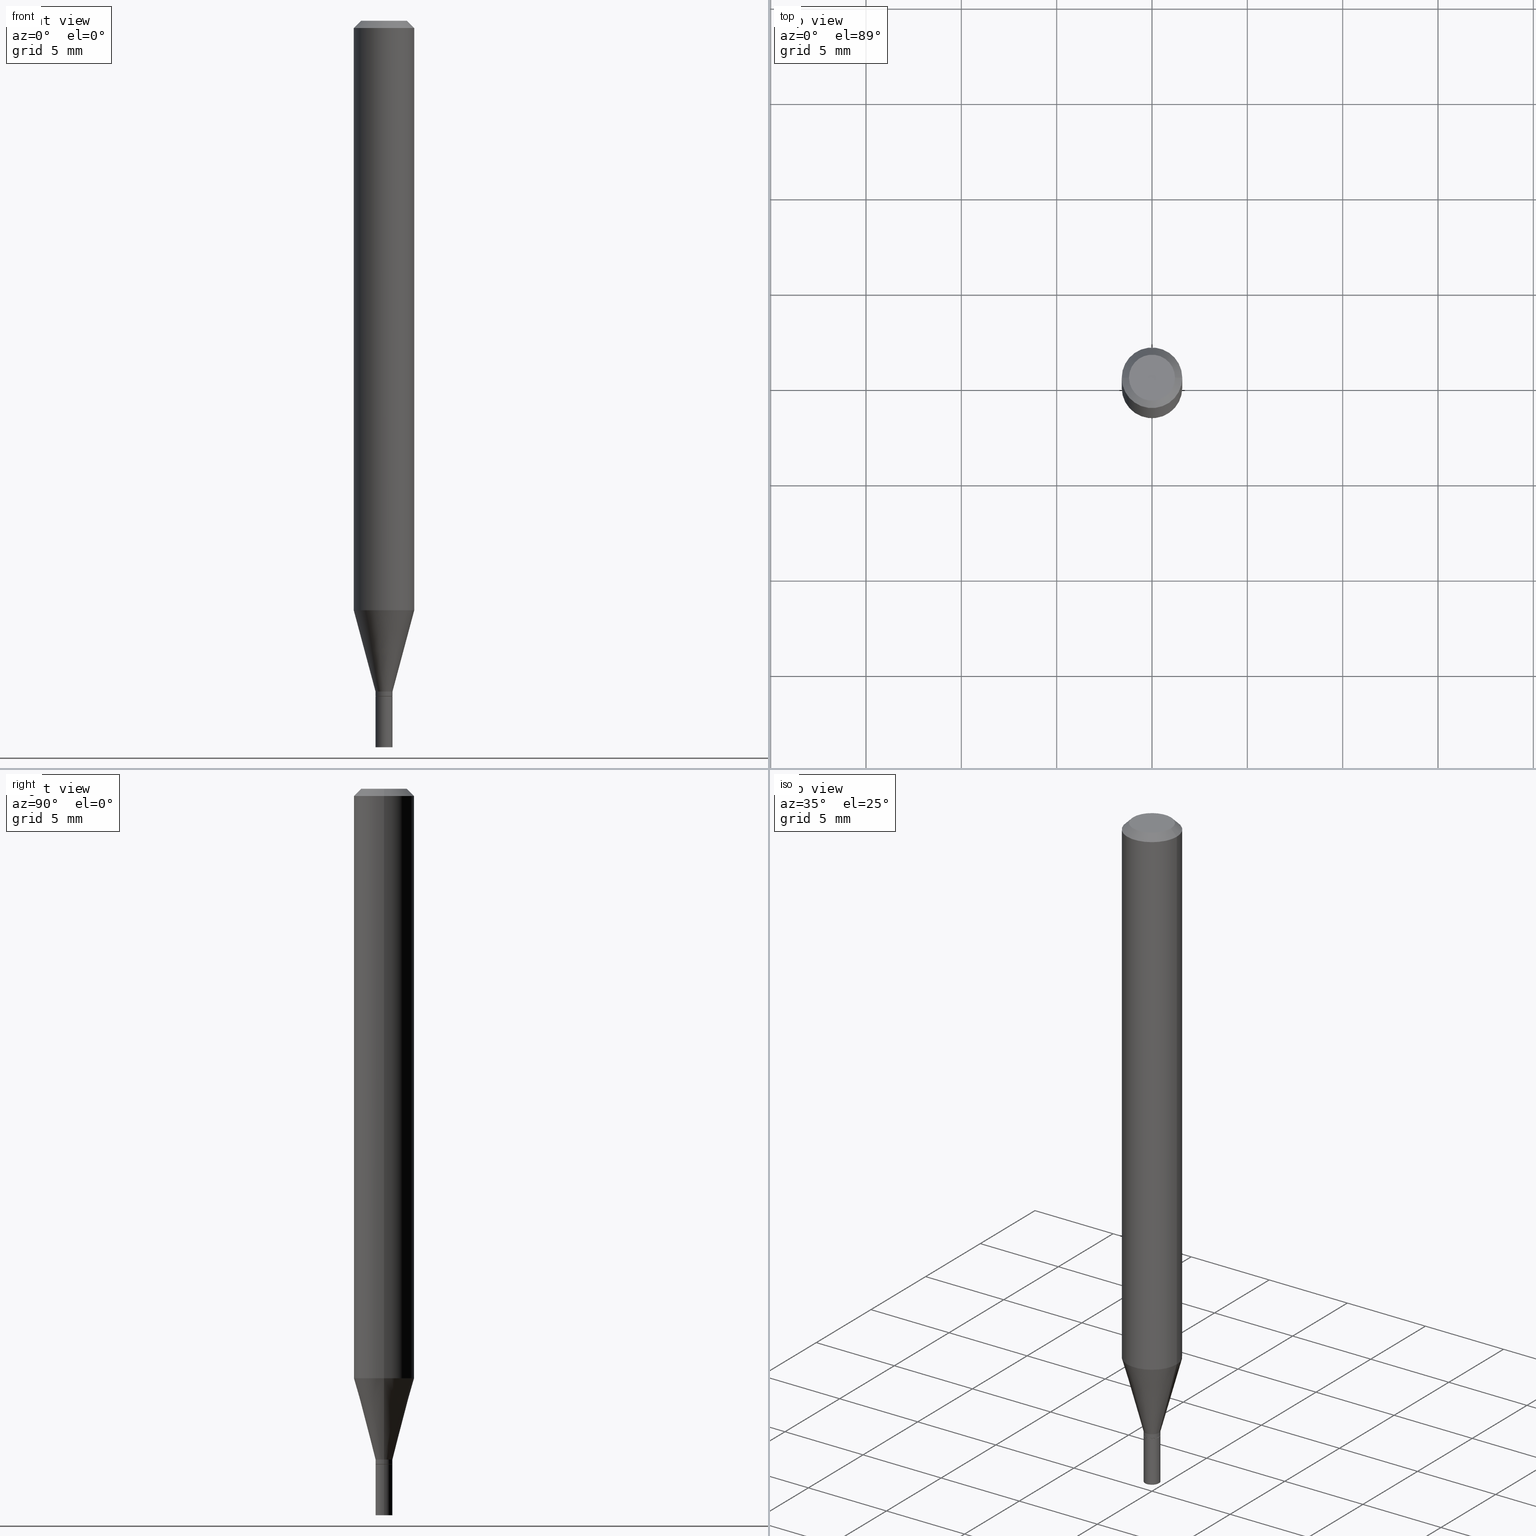
[diagram: canonical four-view strip — front | top / right | iso, engineering-drawing reading convention]
A machine part, canonical four-view strip (front | top / right | iso — engineering-drawing reading convention). The complete STEP part file that produces these views, byte-faithful:
ISO-10303-21;
HEADER;
FILE_DESCRIPTION (( 'STEP AP203' ),
    '1' );
FILE_NAME ('00544.STEP',
    '2024-03-19T21:37:09',
    ( '' ),
    ( '' ),
    'SwSTEP 2.0',
    'SolidWorks 2023',
    '' );
FILE_SCHEMA (( 'CONFIG_CONTROL_DESIGN' ));
ENDSEC;

DATA;
#1 = CARTESIAN_POINT ( 'NONE',  ( 0.000000000000000000, 0.000000000000000000, 0.000000000000000000 ) ) ;
#2 = DIRECTION ( 'NONE',  ( -1.000000000000000000, 6.982962677686266711E-15, 0.000000000000000000 ) ) ;
#3 = LINE ( 'NONE', #150, #290 ) ;
#4 = CIRCLE ( 'NONE', #226, 0.01750000000000000167 ) ;
#5 = CC_DESIGN_PERSON_AND_ORGANIZATION_ASSIGNMENT ( #224, #301, ( #394 ) ) ;
#6 =( NAMED_UNIT ( * ) PLANE_ANGLE_UNIT ( ) SI_UNIT ( $, .RADIAN. ) );
#7 = ORIENTED_EDGE ( 'NONE', *, *, #15, .F. ) ;
#8 = COORDINATED_UNIVERSAL_TIME_OFFSET ( 5, 0, .BEHIND. ) ;
#9 = LINE ( 'NONE', #49, #357 ) ;
#10 = EDGE_CURVE ( 'NONE', #181, #458, #136, .T. ) ;
#11 = APPROVAL_ROLE ( '' ) ;
#12 = CARTESIAN_POINT ( 'NONE',  ( 1.278896122067429216E-44, -1.825924719719875646E-30, -5.229656247639779395E-16 ) ) ;
#13 = CALENDAR_DATE ( 2024, 19, 3 ) ;
#14 = FACE_OUTER_BOUND ( 'NONE', #222, .T. ) ;
#15 = EDGE_CURVE ( 'NONE', #433, #292, #9, .T. ) ;
#16 = SHAPE_DEFINITION_REPRESENTATION ( #286, #119 ) ;
#17 = LINE ( 'NONE', #413, #149 ) ;
#18 = ORIENTED_EDGE ( 'NONE', *, *, #47, .F. ) ;
#19 = VECTOR ( 'NONE', #178, 39.37007874015748143 ) ;
#20 = ORIENTED_EDGE ( 'NONE', *, *, #15, .T. ) ;
#21 = ORIENTED_EDGE ( 'NONE', *, *, #391, .T. ) ;
#22 = CARTESIAN_POINT ( 'NONE',  ( 3.316907271900976096E-16, 0.04749999999999999362, -4.273281759770383169E-16 ) ) ;
#23 = EDGE_LOOP ( 'NONE', ( #34, #311, #322, #7 ) ) ;
#24 = DIRECTION ( 'NONE',  ( -2.445468806185136597E-29, 3.491481338843145583E-15, 1.000000000000000000 ) ) ;
#25 = PRODUCT_DEFINITION ( 'UNKNOWN', '', #394, #195 ) ;
#26 = AXIS2_PLACEMENT_3D ( 'NONE', #192, #342, #259 ) ;
#27 = CONICAL_SURFACE ( 'NONE', #114, 0.06250000000000000000, 0.7853981633974658205 ) ;
#28 = DIRECTION ( 'NONE',  ( 1.000000000000000000, -6.982962677686265922E-15, 4.876176775795935793E-29 ) ) ;
#29 = CYLINDRICAL_SURFACE ( 'NONE', #401, 0.01750000000000000167 ) ;
#30 = DIRECTION ( 'NONE',  ( -2.438088387897960049E-29, 3.491481338843145188E-15, 1.000000000000000000 ) ) ;
#31 = AXIS2_PLACEMENT_3D ( 'NONE', #456, #276, #279 ) ;
#32 = DIRECTION ( 'NONE',  ( -2.445468806185136597E-29, 3.491481338843145583E-15, 1.000000000000000000 ) ) ;
#33 = AXIS2_PLACEMENT_3D ( 'NONE', #281, #353, #173 ) ;
#34 = ORIENTED_EDGE ( 'NONE', *, *, #441, .T. ) ;
#35 = CARTESIAN_POINT ( 'NONE',  ( -0.01750000000000000167, 1.243449787580175444E-16, -8.608136407946085539E-31 ) ) ;
#36 = DIRECTION ( 'NONE',  ( 1.000000000000000000, -6.982962677686265922E-15, 4.876176775795936353E-29 ) ) ;
#37 = CC_DESIGN_PERSON_AND_ORGANIZATION_ASSIGNMENT ( #41, #130, ( #25 ) ) ;
#38 = AXIS2_PLACEMENT_3D ( 'NONE', #461, #141, #422 ) ;
#39 = DIRECTION ( 'NONE',  ( -2.445468806185136597E-29, 3.491481338843145583E-15, 1.000000000000000000 ) ) ;
#40 = CC_DESIGN_DATE_AND_TIME_ASSIGNMENT ( #372, #340, ( #25 ) ) ;
#41 = PERSON_AND_ORGANIZATION ( #190, #380 ) ;
#42 = CARTESIAN_POINT ( 'NONE',  ( 3.386974296566414366E-29, -4.835701654297756579E-15, -1.385000000000000009 ) ) ;
#43 = FACE_OUTER_BOUND ( 'NONE', #128, .T. ) ;
#44 = CONICAL_SURFACE ( 'NONE', #268, 0.01749999999999992534, 0.2617993877991502960 ) ;
#45 = SECURITY_CLASSIFICATION ( '', '', #193 ) ;
#46 =( NAMED_UNIT ( * ) SI_UNIT ( $, .STERADIAN. ) SOLID_ANGLE_UNIT ( ) );
#47 = EDGE_CURVE ( 'NONE', #292, #209, #17, .T. ) ;
#48 = DIRECTION ( 'NONE',  ( -2.445468806185136597E-29, 3.491481338843145583E-15, 1.000000000000000000 ) ) ;
#49 = CARTESIAN_POINT ( 'NONE',  ( 0.01749999999999992534, -1.222018468595091448E-16, 8.533309357642850503E-31 ) ) ;
#50 = EDGE_LOOP ( 'NONE', ( #354, #197, #384, #162 ) ) ;
#51 = MANIFOLD_SOLID_BREP ( 'Body-Move/Copy2[1]', #98 ) ;
#52 = APPROVAL_STATUS ( 'not_yet_approved' ) ;
#53 = FACE_OUTER_BOUND ( 'NONE', #419, .T. ) ;
#54 = CIRCLE ( 'NONE', #64, 0.01700000000000000122 ) ;
#55 = APPROVAL_PERSON_ORGANIZATION ( #298, #57, #262 ) ;
#56 = CYLINDRICAL_SURFACE ( 'NONE', #38, 0.06250000000000000000 ) ;
#57 = APPROVAL ( #124, 'UNSPECIFIED' ) ;
#58 = CARTESIAN_POINT ( 'NONE',  ( 0.01750000000000000167, -4.992818314545698211E-15, -1.395000000000000018 ) ) ;
#59 = EDGE_LOOP ( 'NONE', ( #62, #110 ) ) ;
#60 = ORIENTED_EDGE ( 'NONE', *, *, #106, .T. ) ;
#61 = DIRECTION ( 'NONE',  ( 1.000000000000000000, -6.982962677686279332E-15, 0.000000000000000000 ) ) ;
#62 = ORIENTED_EDGE ( 'NONE', *, *, #420, .F. ) ;
#63 = EDGE_LOOP ( 'NONE', ( #187, #66, #71, #436 ) ) ;
#64 = AXIS2_PLACEMENT_3D ( 'NONE', #315, #388, #205 ) ;
#65 = DIRECTION ( 'NONE',  ( 1.000000000000000000, -6.982962677686248567E-15, 0.000000000000000000 ) ) ;
#66 = ORIENTED_EDGE ( 'NONE', *, *, #252, .T. ) ;
#67 = EDGE_CURVE ( 'NONE', #317, #382, #308, .T. ) ;
#68 = ORIENTED_EDGE ( 'NONE', *, *, #391, .F. ) ;
#69 = EDGE_CURVE ( 'NONE', #382, #181, #189, .T. ) ;
#70 = DIRECTION ( 'NONE',  ( -2.445468806185136597E-29, 3.491481338843145583E-15, 1.000000000000000000 ) ) ;
#71 = ORIENTED_EDGE ( 'NONE', *, *, #450, .T. ) ;
#72 = CARTESIAN_POINT ( 'NONE',  ( 3.411428984628265351E-29, -4.870616467686188228E-15, -1.395000000000000018 ) ) ;
#73 = DIRECTION ( 'NONE',  ( -2.445468806185136877E-29, 3.491481338843145188E-15, 1.000000000000000000 ) ) ;
#74 = ORIENTED_EDGE ( 'NONE', *, *, #352, .F. ) ;
#75 = DIRECTION ( 'NONE',  ( -2.445468806185136877E-29, 3.491481338843145188E-15, 1.000000000000000000 ) ) ;
#76 = VERTEX_POINT ( 'NONE', #302 ) ;
#77 = DIRECTION ( 'NONE',  ( 2.445468806185136597E-29, -3.491481338843145583E-15, -1.000000000000000000 ) ) ;
#78 = ORIENTED_EDGE ( 'NONE', *, *, #332, .F. ) ;
#79 =( GEOMETRIC_REPRESENTATION_CONTEXT ( 3 ) GLOBAL_UNCERTAINTY_ASSIGNED_CONTEXT ( ( #303 ) ) GLOBAL_UNIT_ASSIGNED_CONTEXT ( ( #425, #6, #46 ) ) REPRESENTATION_CONTEXT ( 'NONE', 'WORKASPACE' ) );
#80 = EDGE_CURVE ( 'NONE', #292, #317, #97, .T. ) ;
#81 = CC_DESIGN_PERSON_AND_ORGANIZATION_ASSIGNMENT ( #439, #121, ( #429 ) ) ;
#82 = APPLICATION_PROTOCOL_DEFINITION ( 'international standard', 'config_control_design', 1994, #120 ) ;
#83 = CYLINDRICAL_SURFACE ( 'NONE', #251, 0.06250000000000000000 ) ;
#84 = DATE_AND_TIME ( #13, #270 ) ;
#85 = CARTESIAN_POINT ( 'NONE',  ( 1.222018468595437807E-16, 0.01749999999999513056, -1.395000000000000018 ) ) ;
#86 = ADVANCED_FACE ( 'NONE', ( #225 ), #362, .T. ) ;
#87 = EDGE_CURVE ( 'NONE', #379, #237, #265, .T. ) ;
#88 = COORDINATED_UNIVERSAL_TIME_OFFSET ( 5, 0, .BEHIND. ) ;
#89 = DIRECTION ( 'NONE',  ( -2.445468806185136597E-29, 3.491481338843145583E-15, 1.000000000000000000 ) ) ;
#90 = CONICAL_SURFACE ( 'NONE', #26, 0.01700000000000000122, 0.7853981633974718157 ) ;
#91 = CC_DESIGN_SECURITY_CLASSIFICATION ( #45, ( #394 ) ) ;
#92 = CALENDAR_DATE ( 2024, 19, 3 ) ;
#93 = DIRECTION ( 'NONE',  ( -0.2588190451025216277, 5.211531920934551831E-15, 0.9659258262890679791 ) ) ;
#94 = DATE_AND_TIME ( #191, #170 ) ;
#95 = CARTESIAN_POINT ( 'NONE',  ( -0.06250000000000000000, 4.440892098500626162E-16, -3.074334431409316114E-30 ) ) ;
#96 = DIRECTION ( 'NONE',  ( 0.7071067811865598962, -7.319954787623298644E-15, -0.7071067811865351382 ) ) ;
#97 = CIRCLE ( 'NONE', #122, 0.01749999999999992534 ) ;
#98 = CLOSED_SHELL ( 'NONE', ( #267, #438, #435, #104 ) ) ;
#99 = VECTOR ( 'NONE', #75, 39.37007874015748143 ) ;
#100 = CARTESIAN_POINT ( 'NONE',  ( 0.04749999999999999362, -4.035134999187587991E-16, -5.229656247639753758E-16 ) ) ;
#101 = DIRECTION ( 'NONE',  ( 1.000000000000000000, -6.982962677686279332E-15, 0.000000000000000000 ) ) ;
#102 = ORIENTED_EDGE ( 'NONE', *, *, #113, .T. ) ;
#103 = ADVANCED_FACE ( 'NONE', ( #53 ), #44, .T. ) ;
#104 = ADVANCED_FACE ( 'NONE', ( #43 ), #444, .F. ) ;
#105 = CARTESIAN_POINT ( 'NONE',  ( 0.01749999999999992534, -4.957903501157266562E-15, -1.385000000000000009 ) ) ;
#106 = EDGE_CURVE ( 'NONE', #300, #349, #408, .T. ) ;
#107 = AXIS2_PLACEMENT_3D ( 'NONE', #369, #89, #263 ) ;
#108 = CC_DESIGN_APPROVAL ( #57, ( #45 ) ) ;
#109 = LINE ( 'NONE', #415, #316 ) ;
#110 = ORIENTED_EDGE ( 'NONE', *, *, #113, .F. ) ;
#111 = ORIENTED_EDGE ( 'NONE', *, *, #80, .T. ) ;
#112 = FACE_OUTER_BOUND ( 'NONE', #23, .T. ) ;
#113 = EDGE_CURVE ( 'NONE', #426, #76, #4, .T. ) ;
#114 = AXIS2_PLACEMENT_3D ( 'NONE', #287, #177, #2 ) ;
#115 = CARTESIAN_POINT ( 'NONE',  ( 0.06250000000000000000, -4.364351673553916694E-16, 3.047610484872459871E-30 ) ) ;
#116 = DIRECTION ( 'NONE',  ( 1.000000000000000000, -6.982962677686265922E-15, 4.876176775795935793E-29 ) ) ;
#117 = ORIENTED_EDGE ( 'NONE', *, *, #295, .T. ) ;
#118 = ADVANCED_FACE ( 'NONE', ( #452 ), #83, .T. ) ;
#119 = ADVANCED_BREP_SHAPE_REPRESENTATION ( '00544', ( #51, #364, #466 ), #79 ) ;
#120 = APPLICATION_CONTEXT ( 'configuration controlled 3d designs of mechanical parts and assemblies' ) ;
#121 = PERSON_AND_ORGANIZATION_ROLE ( 'design_owner' ) ;
#122 = AXIS2_PLACEMENT_3D ( 'NONE', #446, #156, #373 ) ;
#123 = VECTOR ( 'NONE', #135, 39.37007874015748143 ) ;
#124 = APPROVAL_STATUS ( 'not_yet_approved' ) ;
#125 = DIRECTION ( 'NONE',  ( -1.000000000000000000, 6.982962677686265922E-15, -4.876176775795935793E-29 ) ) ;
#126 = PERSON_AND_ORGANIZATION_ROLE ( 'classification_officer' ) ;
#127 = CARTESIAN_POINT ( 'NONE',  ( 3.386974296566414366E-29, -4.835701654297756579E-15, -1.385000000000000009 ) ) ;
#128 = EDGE_LOOP ( 'NONE', ( #117, #294 ) ) ;
#129 = APPROVAL_PERSON_ORGANIZATION ( #221, #445, #412 ) ;
#130 = PERSON_AND_ORGANIZATION_ROLE ( 'creator' ) ;
#131 = ORIENTED_EDGE ( 'NONE', *, *, #87, .T. ) ;
#132 = ORIENTED_EDGE ( 'NONE', *, *, #252, .F. ) ;
#133 = DIRECTION ( 'NONE',  ( -2.445468806185136597E-29, 3.491481338843145583E-15, 1.000000000000000000 ) ) ;
#134 = ADVANCED_FACE ( 'NONE', ( #345 ), #90, .T. ) ;
#135 = DIRECTION ( 'NONE',  ( -0.7071067811865598962, 2.468850131082386434E-15, -0.7071067811865351382 ) ) ;
#136 = CIRCLE ( 'NONE', #107, 0.06250000000000000000 ) ;
#137 = CC_DESIGN_APPROVAL ( #445, ( #25 ) ) ;
#138 = CARTESIAN_POINT ( 'NONE',  ( 3.410206250225173110E-29, -4.868870727016767513E-15, -1.394500000000000073 ) ) ;
#139 = ORIENTED_EDGE ( 'NONE', *, *, #333, .T. ) ;
#140 = ADVANCED_FACE ( 'NONE', ( #14 ), #159, .T. ) ;
#141 = DIRECTION ( 'NONE',  ( -2.445468806185136597E-29, 3.491481338843145583E-15, 1.000000000000000000 ) ) ;
#142 = DIRECTION ( 'NONE',  ( 1.000000000000000000, -6.982962677686270655E-15, 0.000000000000000000 ) ) ;
#143 = AXIS2_PLACEMENT_3D ( 'NONE', #166, #239, #421 ) ;
#144 = AXIS2_PLACEMENT_3D ( 'NONE', #1, #146, #36 ) ;
#145 = DIRECTION ( 'NONE',  ( -1.000000000000000000, 6.982962677686266711E-15, 0.000000000000000000 ) ) ;
#146 = DIRECTION ( 'NONE',  ( -2.445468806185136597E-29, 3.491481338843145583E-15, 1.000000000000000000 ) ) ;
#147 = FACE_OUTER_BOUND ( 'NONE', #327, .T. ) ;
#148 = EDGE_LOOP ( 'NONE', ( #152, #180, #247, #250 ) ) ;
#149 = VECTOR ( 'NONE', #228, 39.37007874015748143 ) ;
#150 = CARTESIAN_POINT ( 'NONE',  ( 0.01700000000000000122, -4.989326833206855204E-15, -1.395000000000000018 ) ) ;
#151 = CARTESIAN_POINT ( 'NONE',  ( 0.000000000000000000, 0.000000000000000000, 0.000000000000000000 ) ) ;
#152 = ORIENTED_EDGE ( 'NONE', *, *, #261, .T. ) ;
#153 = MECHANICAL_CONTEXT ( 'NONE', #427, 'mechanical' ) ;
#154 = CALENDAR_DATE ( 2024, 19, 3 ) ;
#155 = CIRCLE ( 'NONE', #219, 0.01700000000000000122 ) ;
#156 = DIRECTION ( 'NONE',  ( -2.445468806185136597E-29, 3.491481338843145583E-15, 1.000000000000000000 ) ) ;
#157 = CARTESIAN_POINT ( 'NONE',  ( 0.000000000000000000, 0.000000000000000000, 0.000000000000000000 ) ) ;
#158 = COORDINATED_UNIVERSAL_TIME_OFFSET ( 5, 0, .BEHIND. ) ;
#159 = CYLINDRICAL_SURFACE ( 'NONE', #218, 0.01749999999999992534 ) ;
#160 = DIRECTION ( 'NONE',  ( 1.000000000000000000, -6.982962677686248567E-15, 0.000000000000000000 ) ) ;
#161 = AXIS2_PLACEMENT_3D ( 'NONE', #85, #309, #125 ) ;
#162 = ORIENTED_EDGE ( 'NONE', *, *, #333, .F. ) ;
#163 = ADVANCED_FACE ( 'NONE', ( #194 ), #344, .F. ) ;
#164 = CC_DESIGN_PERSON_AND_ORGANIZATION_ASSIGNMENT ( #229, #126, ( #45 ) ) ;
#165 = CARTESIAN_POINT ( 'NONE',  ( -0.01749999999999992534, -4.711356675539740119E-15, -1.385000000000000009 ) ) ;
#166 = CARTESIAN_POINT ( 'NONE',  ( 1.278896122067429216E-44, -1.825924719719875646E-30, -5.229656247639779395E-16 ) ) ;
#167 = PLANE ( 'NONE',  #236 ) ;
#168 = ORIENTED_EDGE ( 'NONE', *, *, #87, .F. ) ;
#169 = EDGE_CURVE ( 'NONE', #458, #181, #449, .T. ) ;
#170 = LOCAL_TIME ( 17, 37, 9.000000000000000000, #304 ) ;
#171 = CARTESIAN_POINT ( 'NONE',  ( 0.000000000000000000, 0.000000000000000000, 0.000000000000000000 ) ) ;
#172 = CC_DESIGN_DATE_AND_TIME_ASSIGNMENT ( #94, #368, ( #45 ) ) ;
#173 = DIRECTION ( 'NONE',  ( 1.000000000000000000, -6.982962677686248567E-15, 0.000000000000000000 ) ) ;
#174 = LINE ( 'NONE', #424, #123 ) ;
#175 = ORIENTED_EDGE ( 'NONE', *, *, #462, .T. ) ;
#176 = VECTOR ( 'NONE', #93, 39.37007874015748143 ) ;
#177 = DIRECTION ( 'NONE',  ( 2.445468806185136597E-29, -3.491481338843145583E-15, -1.000000000000000000 ) ) ;
#178 = DIRECTION ( 'NONE',  ( -2.445468806185136877E-29, 3.491481338843145188E-15, 1.000000000000000000 ) ) ;
#179 = DIRECTION ( 'NONE',  ( 1.000000000000000000, -6.982962677686248567E-15, 0.000000000000000000 ) ) ;
#180 = ORIENTED_EDGE ( 'NONE', *, *, #69, .T. ) ;
#181 = VERTEX_POINT ( 'NONE', #210 ) ;
#182 = ADVANCED_FACE ( 'NONE', ( #320 ), #386, .T. ) ;
#183 = AXIS2_PLACEMENT_3D ( 'NONE', #208, #240, #244 ) ;
#184 = CARTESIAN_POINT ( 'NONE',  ( -0.06249999999999999306, -3.805245085686840042E-15, -1.217057713659400964 ) ) ;
#185 = LINE ( 'NONE', #331, #19 ) ;
#186 = APPROVAL_STATUS ( 'not_yet_approved' ) ;
#187 = ORIENTED_EDGE ( 'NONE', *, *, #69, .F. ) ;
#188 = APPROVAL_PERSON_ORGANIZATION ( #273, #406, #11 ) ;
#189 = LINE ( 'NONE', #95, #284 ) ;
#190 = PERSON ( 'UNSPECIFIED', 'UNSPECIFIED', 'UNSPECIFIED', ('UNSPECIFIED'), ('UNSPECIFIED'), ('UNSPECIFIED') ) ;
#191 = CALENDAR_DATE ( 2024, 19, 3 ) ;
#192 = CARTESIAN_POINT ( 'NONE',  ( 3.411428984628265351E-29, -4.870616467686188228E-15, -1.395000000000000018 ) ) ;
#193 = SECURITY_CLASSIFICATION_LEVEL ( 'unclassified' ) ;
#194 = FACE_OUTER_BOUND ( 'NONE', #306, .T. ) ;
#195 = DESIGN_CONTEXT ( 'detailed design', #120, 'design' ) ;
#196 = ORIENTED_EDGE ( 'NONE', *, *, #266, .T. ) ;
#197 = ORIENTED_EDGE ( 'NONE', *, *, #334, .T. ) ;
#198 = DIRECTION ( 'NONE',  ( -2.445468806185136597E-29, 3.491481338843145583E-15, 1.000000000000000000 ) ) ;
#199 = AXIS2_PLACEMENT_3D ( 'NONE', #321, #385, #142 ) ;
#200 = CONICAL_SURFACE ( 'NONE', #213, 0.06250000000000000000, 0.7853981633974658205 ) ;
#201 = ORIENTED_EDGE ( 'NONE', *, *, #295, .F. ) ;
#202 = DIRECTION ( 'NONE',  ( -2.445468806185136597E-29, 3.491481338843145583E-15, 1.000000000000000000 ) ) ;
#203 = DIRECTION ( 'NONE',  ( 1.000000000000000000, -6.982962677686265922E-15, 4.876176775795936353E-29 ) ) ;
#204 = VERTEX_POINT ( 'NONE', #58 ) ;
#205 = DIRECTION ( 'NONE',  ( 1.000000000000000000, -6.982962677686274599E-15, 0.000000000000000000 ) ) ;
#206 = VECTOR ( 'NONE', #411, 39.37007874015748143 ) ;
#207 = VECTOR ( 'NONE', #73, 39.37007874015748143 ) ;
#208 = CARTESIAN_POINT ( 'NONE',  ( 3.411428984628265351E-29, -4.870616467686188228E-15, -1.395000000000000018 ) ) ;
#209 = VERTEX_POINT ( 'NONE', #346 ) ;
#210 = CARTESIAN_POINT ( 'NONE',  ( -0.06250000000000000000, -1.706764047959712450E-15, -0.01499999999999999944 ) ) ;
#211 = EDGE_CURVE ( 'NONE', #349, #300, #234, .T. ) ;
#212 = DIRECTION ( 'NONE',  ( -2.445468806185136597E-29, 3.491481338843145583E-15, 1.000000000000000000 ) ) ;
#213 = AXIS2_PLACEMENT_3D ( 'NONE', #328, #77, #145 ) ;
#214 = DIRECTION ( 'NONE',  ( 1.000000000000000000, -6.982962677686274599E-15, 0.000000000000000000 ) ) ;
#215 = EDGE_CURVE ( 'NONE', #379, #454, #54, .T. ) ;
#216 = CARTESIAN_POINT ( 'NONE',  ( 0.01700000000000000122, -4.989326833206855204E-15, -1.395000000000000018 ) ) ;
#217 = LENGTH_MEASURE_WITH_UNIT ( LENGTH_MEASURE( 0.02539999999999999897 ), #465 );
#218 = AXIS2_PLACEMENT_3D ( 'NONE', #448, #271, #374 ) ;
#219 = AXIS2_PLACEMENT_3D ( 'NONE', #72, #212, #214 ) ;
#220 = CARTESIAN_POINT ( 'NONE',  ( -0.01749999999999992534, 1.243449787580170020E-16, -8.608136407946047003E-31 ) ) ;
#221 = PERSON_AND_ORGANIZATION ( #190, #380 ) ;
#222 = EDGE_LOOP ( 'NONE', ( #74, #196, #20, #319 ) ) ;
#223 = PRODUCT_RELATED_PRODUCT_CATEGORY ( 'detail', '', ( #429 ) ) ;
#224 = PERSON_AND_ORGANIZATION ( #190, #380 ) ;
#225 = FACE_OUTER_BOUND ( 'NONE', #278, .T. ) ;
#226 = AXIS2_PLACEMENT_3D ( 'NONE', #341, #274, #160 ) ;
#227 = LOCAL_TIME ( 17, 37, 9.000000000000000000, #231 ) ;
#228 = DIRECTION ( 'NONE',  ( 0.2588190451025216277, 1.565188264969619995E-15, 0.9659258262890679791 ) ) ;
#229 = PERSON_AND_ORGANIZATION ( #190, #380 ) ;
#230 = DIRECTION ( 'NONE',  ( 1.000000000000000000, -6.982962677686279332E-15, 0.000000000000000000 ) ) ;
#231 = COORDINATED_UNIVERSAL_TIME_OFFSET ( 5, 0, .BEHIND. ) ;
#232 = CARTESIAN_POINT ( 'NONE',  ( -0.01700000000000000122, -4.749824202606971878E-15, -1.395000000000000018 ) ) ;
#233 = DIRECTION ( 'NONE',  ( -1.000000000000000000, 6.982962677686265922E-15, -4.876176775795935793E-29 ) ) ;
#234 = CIRCLE ( 'NONE', #143, 0.04749999999999999362 ) ;
#235 = ORIENTED_EDGE ( 'NONE', *, *, #106, .F. ) ;
#236 = AXIS2_PLACEMENT_3D ( 'NONE', #318, #30, #28 ) ;
#237 = VERTEX_POINT ( 'NONE', #348 ) ;
#238 = ORIENTED_EDGE ( 'NONE', *, *, #211, .T. ) ;
#239 = DIRECTION ( 'NONE',  ( -2.445468806185136597E-29, 3.491481338843145583E-15, 1.000000000000000000 ) ) ;
#240 = DIRECTION ( 'NONE',  ( -2.445468806185136597E-29, 3.491481338843145583E-15, 1.000000000000000000 ) ) ;
#241 = DIRECTION ( 'NONE',  ( 2.438088387897960049E-29, -3.491481338843145188E-15, -1.000000000000000000 ) ) ;
#242 = EDGE_LOOP ( 'NONE', ( #378, #350, #201, #282 ) ) ;
#243 = AXIS2_PLACEMENT_3D ( 'NONE', #277, #355, #463 ) ;
#244 = DIRECTION ( 'NONE',  ( 1.000000000000000000, -6.982962677686274599E-15, 0.000000000000000000 ) ) ;
#245 = ORIENTED_EDGE ( 'NONE', *, *, #10, .T. ) ;
#246 = DIRECTION ( 'NONE',  ( 1.000000000000000000, -6.982962677686266711E-15, 4.876176775795935232E-29 ) ) ;
#247 = ORIENTED_EDGE ( 'NONE', *, *, #169, .F. ) ;
#248 = CARTESIAN_POINT ( 'NONE',  ( 0.01749999999999992534, -4.991072573876276707E-15, -1.394500000000000073 ) ) ;
#249 = ORIENTED_EDGE ( 'NONE', *, *, #215, .T. ) ;
#250 = ORIENTED_EDGE ( 'NONE', *, *, #450, .F. ) ;
#251 = AXIS2_PLACEMENT_3D ( 'NONE', #157, #48, #377 ) ;
#252 = EDGE_CURVE ( 'NONE', #382, #209, #400, .T. ) ;
#253 = CARTESIAN_POINT ( 'NONE',  ( 3.668203209277704895E-29, -5.237222008264718177E-15, -1.500000000000000222 ) ) ;
#254 = EDGE_CURVE ( 'NONE', #317, #292, #464, .T. ) ;
#255 = CARTESIAN_POINT ( 'NONE',  ( 3.410206250225173110E-29, -4.868870727016767513E-15, -1.394500000000000073 ) ) ;
#256 = AXIS2_PLACEMENT_3D ( 'NONE', #381, #70, #101 ) ;
#257 = LOCAL_TIME ( 17, 37, 9.000000000000000000, #88 ) ;
#258 = DIRECTION ( 'NONE',  ( 1.000000000000000000, 0.000000000000000000, 0.000000000000000000 ) ) ;
#259 = DIRECTION ( 'NONE',  ( 1.000000000000000000, -6.982962677686274599E-15, 0.000000000000000000 ) ) ;
#260 = ORIENTED_EDGE ( 'NONE', *, *, #361, .F. ) ;
#261 = EDGE_CURVE ( 'NONE', #209, #382, #323, .T. ) ;
#262 = APPROVAL_ROLE ( '' ) ;
#263 = DIRECTION ( 'NONE',  ( 1.000000000000000000, -6.982962677686266711E-15, 0.000000000000000000 ) ) ;
#264 = APPROVAL_DATE_TIME ( #447, #57 ) ;
#265 = LINE ( 'NONE', #232, #206 ) ;
#266 = EDGE_CURVE ( 'NONE', #237, #433, #296, .T. ) ;
#267 = ADVANCED_FACE ( 'NONE', ( #275 ), #29, .T. ) ;
#268 = AXIS2_PLACEMENT_3D ( 'NONE', #42, #299, #230 ) ;
#269 = APPROVAL_DATE_TIME ( #335, #445 ) ;
#270 = LOCAL_TIME ( 17, 37, 9.000000000000000000, #8 ) ;
#271 = DIRECTION ( 'NONE',  ( -2.445468806185136597E-29, 3.491481338843145583E-15, 1.000000000000000000 ) ) ;
#272 = EDGE_LOOP ( 'NONE', ( #21, #131, #389, #314 ) ) ;
#273 = PERSON_AND_ORGANIZATION ( #190, #380 ) ;
#274 = DIRECTION ( 'NONE',  ( -2.445468806185136597E-29, 3.491481338843145583E-15, 1.000000000000000000 ) ) ;
#275 = FACE_OUTER_BOUND ( 'NONE', #242, .T. ) ;
#276 = DIRECTION ( 'NONE',  ( -2.445468806185136597E-29, 3.491481338843145583E-15, 1.000000000000000000 ) ) ;
#277 = CARTESIAN_POINT ( 'NONE',  ( 3.668203209277705088E-31, -5.237222008264718399E-17, -0.01499999999999999944 ) ) ;
#278 = EDGE_LOOP ( 'NONE', ( #111, #347, #407, #18 ) ) ;
#279 = DIRECTION ( 'NONE',  ( 1.000000000000000000, -6.982962677686270655E-15, 0.000000000000000000 ) ) ;
#280 = ADVANCED_FACE ( 'NONE', ( #351 ), #167, .F. ) ;
#281 = CARTESIAN_POINT ( 'NONE',  ( 3.411428984628265351E-29, -4.870616467686188228E-15, -1.395000000000000018 ) ) ;
#282 = ORIENTED_EDGE ( 'NONE', *, *, #440, .F. ) ;
#283 = ADVANCED_FACE ( 'NONE', ( #312 ), #56, .T. ) ;
#284 = VECTOR ( 'NONE', #405, 39.37007874015748143 ) ;
#285 = CIRCLE ( 'NONE', #297, 0.01749999999999992534 ) ;
#286 = PRODUCT_DEFINITION_SHAPE ( 'NONE', 'NONE',  #25 ) ;
#287 = CARTESIAN_POINT ( 'NONE',  ( 3.668203209277705088E-31, -5.237222008264718399E-17, -0.01499999999999999944 ) ) ;
#288 = FACE_OUTER_BOUND ( 'NONE', #59, .T. ) ;
#289 = ORIENTED_EDGE ( 'NONE', *, *, #334, .F. ) ;
#290 = VECTOR ( 'NONE', #291, 39.37007874015748143 ) ;
#291 = DIRECTION ( 'NONE',  ( 0.7071067811865642261, -2.468850131082431399E-15, 0.7071067811865309194 ) ) ;
#292 = VERTEX_POINT ( 'NONE', #105 ) ;
#293 = CYLINDRICAL_SURFACE ( 'NONE', #144, 0.01750000000000000167 ) ;
#294 = ORIENTED_EDGE ( 'NONE', *, *, #332, .T. ) ;
#295 = EDGE_CURVE ( 'NONE', #204, #337, #417, .T. ) ;
#296 = CIRCLE ( 'NONE', #434, 0.01749999999999992534 ) ;
#297 = AXIS2_PLACEMENT_3D ( 'NONE', #255, #395, #326 ) ;
#298 = PERSON_AND_ORGANIZATION ( #190, #380 ) ;
#299 = DIRECTION ( 'NONE',  ( -2.445468806185136597E-29, 3.491481338843145583E-15, 1.000000000000000000 ) ) ;
#300 = VERTEX_POINT ( 'NONE', #383 ) ;
#301 = PERSON_AND_ORGANIZATION_ROLE ( 'creator' ) ;
#302 = CARTESIAN_POINT ( 'NONE',  ( 0.01750000000000000167, -5.359423855124228160E-15, -1.500000000000000222 ) ) ;
#303 = UNCERTAINTY_MEASURE_WITH_UNIT (LENGTH_MEASURE( 1.000000000000000082E-05 ), #425, 'distance_accuracy_value', 'NONE');
#304 = COORDINATED_UNIVERSAL_TIME_OFFSET ( 5, 0, .BEHIND. ) ;
#305 = DIRECTION ( 'NONE',  ( 1.000000000000000000, -6.982962677686267499E-15, 4.852736867747366768E-29 ) ) ;
#306 = EDGE_LOOP ( 'NONE', ( #60, #238 ) ) ;
#307 = PERSON_AND_ORGANIZATION_ROLE ( 'design_supplier' ) ;
#308 = LINE ( 'NONE', #165, #176 ) ;
#309 = DIRECTION ( 'NONE',  ( 2.438088387897960049E-29, -3.491481338843145188E-15, -1.000000000000000000 ) ) ;
#310 = ORIENTED_EDGE ( 'NONE', *, *, #266, .F. ) ;
#311 = ORIENTED_EDGE ( 'NONE', *, *, #352, .T. ) ;
#312 = FACE_OUTER_BOUND ( 'NONE', #63, .T. ) ;
#313 = CC_DESIGN_PERSON_AND_ORGANIZATION_ASSIGNMENT ( #443, #307, ( #394 ) ) ;
#314 = ORIENTED_EDGE ( 'NONE', *, *, #462, .F. ) ;
#315 = CARTESIAN_POINT ( 'NONE',  ( 3.411428984628265351E-29, -4.870616467686188228E-15, -1.395000000000000018 ) ) ;
#316 = VECTOR ( 'NONE', #96, 39.37007874015748143 ) ;
#317 = VERTEX_POINT ( 'NONE', #453 ) ;
#318 = CARTESIAN_POINT ( 'NONE',  ( 3.411428984628265351E-29, -4.870616467686188228E-15, -1.395000000000000018 ) ) ;
#319 = ORIENTED_EDGE ( 'NONE', *, *, #254, .F. ) ;
#320 = FACE_OUTER_BOUND ( 'NONE', #272, .T. ) ;
#321 = CARTESIAN_POINT ( 'NONE',  ( 2.976276674081067124E-29, -4.249334295536902658E-15, -1.217057713659400964 ) ) ;
#322 = ORIENTED_EDGE ( 'NONE', *, *, #80, .F. ) ;
#323 = CIRCLE ( 'NONE', #31, 0.06250000000000000000 ) ;
#324 = AXIS2_PLACEMENT_3D ( 'NONE', #253, #39, #179 ) ;
#325 = CARTESIAN_POINT ( 'NONE',  ( -0.01750000000000000167, -4.929574259217435954E-15, -1.500000000000000222 ) ) ;
#326 = DIRECTION ( 'NONE',  ( 1.000000000000000000, -6.982962677686279332E-15, 0.000000000000000000 ) ) ;
#327 = EDGE_LOOP ( 'NONE', ( #260, #102, #430, #78 ) ) ;
#328 = CARTESIAN_POINT ( 'NONE',  ( 3.668203209277705088E-31, -5.237222008264718399E-17, -0.01499999999999999944 ) ) ;
#329 = EDGE_LOOP ( 'NONE', ( #68, #398 ) ) ;
#330 = VECTOR ( 'NONE', #428, 39.37007874015748143 ) ;
#331 = CARTESIAN_POINT ( 'NONE',  ( 0.01750000000000000167, -1.222018468595096625E-16, 8.533309357642889039E-31 ) ) ;
#332 = EDGE_CURVE ( 'NONE', #337, #204, #363, .T. ) ;
#333 = EDGE_CURVE ( 'NONE', #300, #181, #174, .T. ) ;
#334 = EDGE_CURVE ( 'NONE', #349, #458, #109, .T. ) ;
#335 = DATE_AND_TIME ( #154, #339 ) ;
#336 = APPROVAL_DATE_TIME ( #84, #406 ) ;
#337 = VERTEX_POINT ( 'NONE', #418 ) ;
#338 = CLOSED_SHELL ( 'NONE', ( #397, #182, #414, #118, #86, #103, #283, #460, #163, #280, #134, #140 ) ) ;
#339 = LOCAL_TIME ( 17, 37, 9.000000000000000000, #158 ) ;
#340 = DATE_TIME_ROLE ( 'creation_date' ) ;
#341 = CARTESIAN_POINT ( 'NONE',  ( 3.668203209277704895E-29, -5.237222008264718177E-15, -1.500000000000000222 ) ) ;
#342 = DIRECTION ( 'NONE',  ( -2.445468806185136597E-29, 3.491481338843145583E-15, 1.000000000000000000 ) ) ;
#343 = EDGE_LOOP ( 'NONE', ( #289, #235, #139, #245 ) ) ;
#344 = PLANE ( 'NONE',  #423 ) ;
#345 = FACE_OUTER_BOUND ( 'NONE', #410, .T. ) ;
#346 = CARTESIAN_POINT ( 'NONE',  ( 0.06249999999999999306, -4.685769462892295117E-15, -1.217057713659400964 ) ) ;
#347 = ORIENTED_EDGE ( 'NONE', *, *, #67, .T. ) ;
#348 = CARTESIAN_POINT ( 'NONE',  ( -0.01749999999999992534, -4.744525748258750265E-15, -1.394500000000000073 ) ) ;
#349 = VERTEX_POINT ( 'NONE', #100 ) ;
#350 = ORIENTED_EDGE ( 'NONE', *, *, #361, .T. ) ;
#351 = FACE_OUTER_BOUND ( 'NONE', #329, .T. ) ;
#352 = EDGE_CURVE ( 'NONE', #237, #317, #392, .T. ) ;
#353 = DIRECTION ( 'NONE',  ( -2.445468806185136597E-29, 3.491481338843145583E-15, 1.000000000000000000 ) ) ;
#354 = ORIENTED_EDGE ( 'NONE', *, *, #211, .F. ) ;
#355 = DIRECTION ( 'NONE',  ( -2.445468806185136597E-29, 3.491481338843145583E-15, 1.000000000000000000 ) ) ;
#356 = CYLINDRICAL_SURFACE ( 'NONE', #416, 0.01749999999999992534 ) ;
#357 = VECTOR ( 'NONE', #451, 39.37007874015748143 ) ;
#358 = DIRECTION ( 'NONE',  ( -2.438088387897960049E-29, 3.491481338843145188E-15, 1.000000000000000000 ) ) ;
#359 = CARTESIAN_POINT ( 'NONE',  ( 0.06250000000000000000, -4.888073874380388472E-16, -0.01499999999999999944 ) ) ;
#360 = CARTESIAN_POINT ( 'NONE',  ( -0.01700000000000000122, -4.747174975432860677E-15, -1.395000000000000018 ) ) ;
#361 = EDGE_CURVE ( 'NONE', #426, #337, #390, .T. ) ;
#362 = CONICAL_SURFACE ( 'NONE', #393, 0.01749999999999992534, 0.2617993877991502960 ) ;
#363 = CIRCLE ( 'NONE', #33, 0.01750000000000000167 ) ;
#364 = MANIFOLD_SOLID_BREP ( 'Body-Move/Copy2[2]', #338 ) ;
#365 = FACE_OUTER_BOUND ( 'NONE', #50, .T. ) ;
#366 = APPLICATION_PROTOCOL_DEFINITION ( 'international standard', 'config_control_design', 1994, #427 ) ;
#367 = DIRECTION ( 'NONE',  ( 1.000000000000000000, -6.982962677686279332E-15, 0.000000000000000000 ) ) ;
#368 = DATE_TIME_ROLE ( 'classification_date' ) ;
#369 = CARTESIAN_POINT ( 'NONE',  ( 3.668203209277705088E-31, -5.237222008264718399E-17, -0.01499999999999999944 ) ) ;
#370 = DIMENSIONAL_EXPONENTS ( 1.000000000000000000, 0.000000000000000000, 0.000000000000000000, 0.000000000000000000, 0.000000000000000000, 0.000000000000000000, 0.000000000000000000 ) ;
#371 = AXIS2_PLACEMENT_3D ( 'NONE', #431, #358, #116 ) ;
#372 = DATE_AND_TIME ( #92, #257 ) ;
#373 = DIRECTION ( 'NONE',  ( 1.000000000000000000, -6.982962677686279332E-15, 0.000000000000000000 ) ) ;
#374 = DIRECTION ( 'NONE',  ( 1.000000000000000000, -6.982962677686266711E-15, 4.876176775795935232E-29 ) ) ;
#375 = ORIENTED_EDGE ( 'NONE', *, *, #254, .T. ) ;
#376 = CARTESIAN_POINT ( 'NONE',  ( 0.000000000000000000, 0.000000000000000000, 0.000000000000000000 ) ) ;
#377 = DIRECTION ( 'NONE',  ( 1.000000000000000000, -6.982962677686266711E-15, 4.876176775795935793E-29 ) ) ;
#378 = ORIENTED_EDGE ( 'NONE', *, *, #420, .T. ) ;
#379 = VERTEX_POINT ( 'NONE', #360 ) ;
#380 = ORGANIZATION ( 'UNSPECIFIED', 'UNSPECIFIED', '' ) ;
#381 = CARTESIAN_POINT ( 'NONE',  ( 3.386974296566414366E-29, -4.835701654297756579E-15, -1.385000000000000009 ) ) ;
#382 = VERTEX_POINT ( 'NONE', #184 ) ;
#383 = CARTESIAN_POINT ( 'NONE',  ( -0.04749999999999999362, 3.578768372314202124E-16, -5.229656247639803061E-16 ) ) ;
#384 = ORIENTED_EDGE ( 'NONE', *, *, #169, .T. ) ;
#385 = DIRECTION ( 'NONE',  ( -2.445468806185136597E-29, 3.491481338843145583E-15, 1.000000000000000000 ) ) ;
#386 = CONICAL_SURFACE ( 'NONE', #183, 0.01700000000000000122, 0.7853981633974718157 ) ;
#387 = CARTESIAN_POINT ( 'NONE',  ( 3.411428984628265351E-29, -4.870616467686188228E-15, -1.395000000000000018 ) ) ;
#388 = DIRECTION ( 'NONE',  ( -2.445468806185136597E-29, 3.491481338843145583E-15, 1.000000000000000000 ) ) ;
#389 = ORIENTED_EDGE ( 'NONE', *, *, #441, .F. ) ;
#390 = LINE ( 'NONE', #35, #207 ) ;
#391 = EDGE_CURVE ( 'NONE', #454, #379, #155, .T. ) ;
#392 = LINE ( 'NONE', #220, #330 ) ;
#393 = AXIS2_PLACEMENT_3D ( 'NONE', #127, #403, #367 ) ;
#394 = PRODUCT_DEFINITION_FORMATION_WITH_SPECIFIED_SOURCE ( 'ANY', '', #429, .NOT_KNOWN. ) ;
#395 = DIRECTION ( 'NONE',  ( -2.445468806185136597E-29, 3.491481338843145583E-15, 1.000000000000000000 ) ) ;
#396 = LINE ( 'NONE', #115, #99 ) ;
#397 = ADVANCED_FACE ( 'NONE', ( #112 ), #356, .T. ) ;
#398 = ORIENTED_EDGE ( 'NONE', *, *, #215, .F. ) ;
#399 = FACE_OUTER_BOUND ( 'NONE', #343, .T. ) ;
#400 = CIRCLE ( 'NONE', #199, 0.06250000000000000000 ) ;
#401 = AXIS2_PLACEMENT_3D ( 'NONE', #171, #24, #203 ) ;
#402 = DIRECTION ( 'NONE',  ( 0.000000000000000000, 0.000000000000000000, 1.000000000000000000 ) ) ;
#403 = DIRECTION ( 'NONE',  ( -2.445468806185136597E-29, 3.491481338843145583E-15, 1.000000000000000000 ) ) ;
#404 = CALENDAR_DATE ( 2024, 19, 3 ) ;
#405 = DIRECTION ( 'NONE',  ( -2.445468806185136877E-29, 3.491481338843145188E-15, 1.000000000000000000 ) ) ;
#406 = APPROVAL ( #186, 'UNSPECIFIED' ) ;
#407 = ORIENTED_EDGE ( 'NONE', *, *, #261, .F. ) ;
#408 = CIRCLE ( 'NONE', #432, 0.04749999999999999362 ) ;
#409 = CIRCLE ( 'NONE', #324, 0.01750000000000000167 ) ;
#410 = EDGE_LOOP ( 'NONE', ( #168, #249, #175, #310 ) ) ;
#411 = DIRECTION ( 'NONE',  ( -0.7071067811865642261, 7.493145998870414114E-15, 0.7071067811865309194 ) ) ;
#412 = APPROVAL_ROLE ( '' ) ;
#413 = CARTESIAN_POINT ( 'NONE',  ( 0.01749999999999992534, -4.957903501157266562E-15, -1.385000000000000009 ) ) ;
#414 = ADVANCED_FACE ( 'NONE', ( #365 ), #27, .T. ) ;
#415 = CARTESIAN_POINT ( 'NONE',  ( 0.06250000000000000000, -4.811533449433679005E-16, -0.01499999999999999944 ) ) ;
#416 = AXIS2_PLACEMENT_3D ( 'NONE', #151, #32, #246 ) ;
#417 = CIRCLE ( 'NONE', #442, 0.01750000000000000167 ) ;
#418 = CARTESIAN_POINT ( 'NONE',  ( -0.01750000000000000167, -4.929574259217435954E-15, -1.395000000000000018 ) ) ;
#419 = EDGE_LOOP ( 'NONE', ( #459, #375, #457, #132 ) ) ;
#420 = EDGE_CURVE ( 'NONE', #76, #426, #409, .T. ) ;
#421 = DIRECTION ( 'NONE',  ( 1.000000000000000000, -6.982962677686267499E-15, 4.852736867747366768E-29 ) ) ;
#422 = DIRECTION ( 'NONE',  ( 1.000000000000000000, -6.982962677686266711E-15, 4.876176775795935793E-29 ) ) ;
#423 = AXIS2_PLACEMENT_3D ( 'NONE', #22, #241, #233 ) ;
#424 = CARTESIAN_POINT ( 'NONE',  ( -0.06250000000000000000, 3.840629472727444916E-16, -0.01499999999999999944 ) ) ;
#425 =( CONVERSION_BASED_UNIT ( 'INCH', #217 ) LENGTH_UNIT ( ) NAMED_UNIT ( #370 ) );
#426 = VERTEX_POINT ( 'NONE', #325 ) ;
#427 = APPLICATION_CONTEXT ( 'configuration controlled 3d designs of mechanical parts and assemblies' ) ;
#428 = DIRECTION ( 'NONE',  ( -2.445468806185136877E-29, 3.491481338843145188E-15, 1.000000000000000000 ) ) ;
#429 = PRODUCT ( '00544', '00544', '', ( #153 ) ) ;
#430 = ORIENTED_EDGE ( 'NONE', *, *, #440, .T. ) ;
#431 = CARTESIAN_POINT ( 'NONE',  ( 3.576687321579069994E-29, -5.368277968210015545E-15, -1.500000000000000222 ) ) ;
#432 = AXIS2_PLACEMENT_3D ( 'NONE', #12, #198, #305 ) ;
#433 = VERTEX_POINT ( 'NONE', #248 ) ;
#434 = AXIS2_PLACEMENT_3D ( 'NONE', #138, #133, #61 ) ;
#435 = ADVANCED_FACE ( 'NONE', ( #147 ), #293, .T. ) ;
#436 = ORIENTED_EDGE ( 'NONE', *, *, #10, .F. ) ;
#437 = PLANE ( 'NONE',  #371 ) ;
#438 = ADVANCED_FACE ( 'NONE', ( #288 ), #437, .F. ) ;
#439 = PERSON_AND_ORGANIZATION ( #190, #380 ) ;
#440 = EDGE_CURVE ( 'NONE', #76, #204, #185, .T. ) ;
#441 = EDGE_CURVE ( 'NONE', #433, #237, #285, .T. ) ;
#442 = AXIS2_PLACEMENT_3D ( 'NONE', #387, #202, #65 ) ;
#443 = PERSON_AND_ORGANIZATION ( #190, #380 ) ;
#444 = PLANE ( 'NONE',  #161 ) ;
#445 = APPROVAL ( #52, 'UNSPECIFIED' ) ;
#446 = CARTESIAN_POINT ( 'NONE',  ( 3.386974296566414366E-29, -4.835701654297756579E-15, -1.385000000000000009 ) ) ;
#447 = DATE_AND_TIME ( #404, #227 ) ;
#448 = CARTESIAN_POINT ( 'NONE',  ( 0.000000000000000000, 0.000000000000000000, 0.000000000000000000 ) ) ;
#449 = CIRCLE ( 'NONE', #243, 0.06250000000000000000 ) ;
#450 = EDGE_CURVE ( 'NONE', #209, #458, #396, .T. ) ;
#451 = DIRECTION ( 'NONE',  ( -2.445468806185136877E-29, 3.491481338843145188E-15, 1.000000000000000000 ) ) ;
#452 = FACE_OUTER_BOUND ( 'NONE', #148, .T. ) ;
#453 = CARTESIAN_POINT ( 'NONE',  ( -0.01749999999999992534, -4.258300880613290081E-15, -1.385000000000000009 ) ) ;
#454 = VERTEX_POINT ( 'NONE', #216 ) ;
#455 = CC_DESIGN_APPROVAL ( #406, ( #394 ) ) ;
#456 = CARTESIAN_POINT ( 'NONE',  ( 2.976276674081067124E-29, -4.249334295536902658E-15, -1.217057713659400964 ) ) ;
#457 = ORIENTED_EDGE ( 'NONE', *, *, #47, .T. ) ;
#458 = VERTEX_POINT ( 'NONE', #359 ) ;
#459 = ORIENTED_EDGE ( 'NONE', *, *, #67, .F. ) ;
#460 = ADVANCED_FACE ( 'NONE', ( #399 ), #200, .T. ) ;
#461 = CARTESIAN_POINT ( 'NONE',  ( 0.000000000000000000, 0.000000000000000000, 0.000000000000000000 ) ) ;
#462 = EDGE_CURVE ( 'NONE', #454, #433, #3, .T. ) ;
#463 = DIRECTION ( 'NONE',  ( 1.000000000000000000, -6.982962677686266711E-15, 0.000000000000000000 ) ) ;
#464 = CIRCLE ( 'NONE', #256, 0.01749999999999992534 ) ;
#465 =( LENGTH_UNIT ( ) NAMED_UNIT ( * ) SI_UNIT ( $, .METRE. ) );
#466 = AXIS2_PLACEMENT_3D ( 'NONE', #376, #402, #258 ) ;
ENDSEC;
END-ISO-10303-21;
